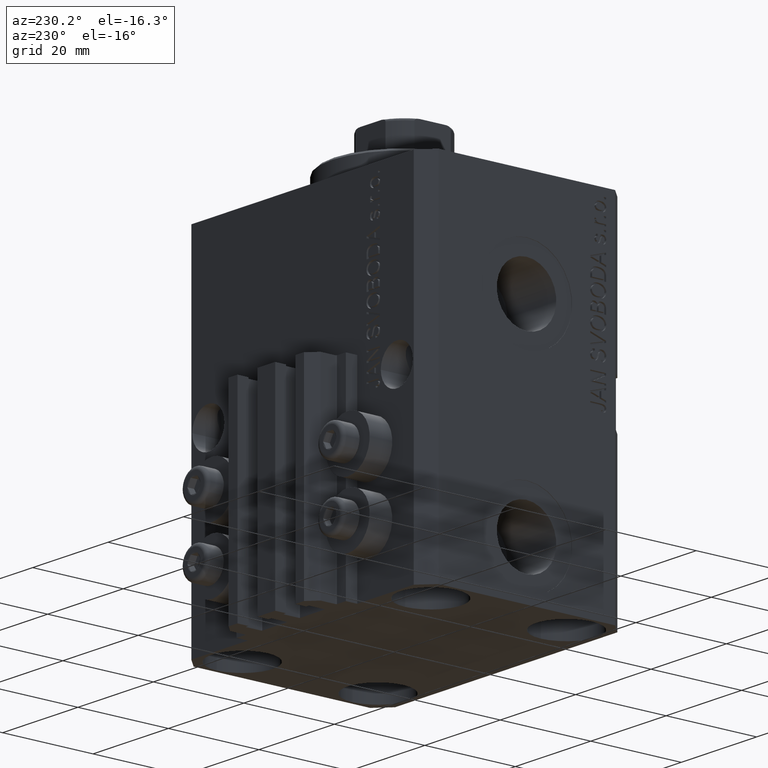
[diagram: clean part render]
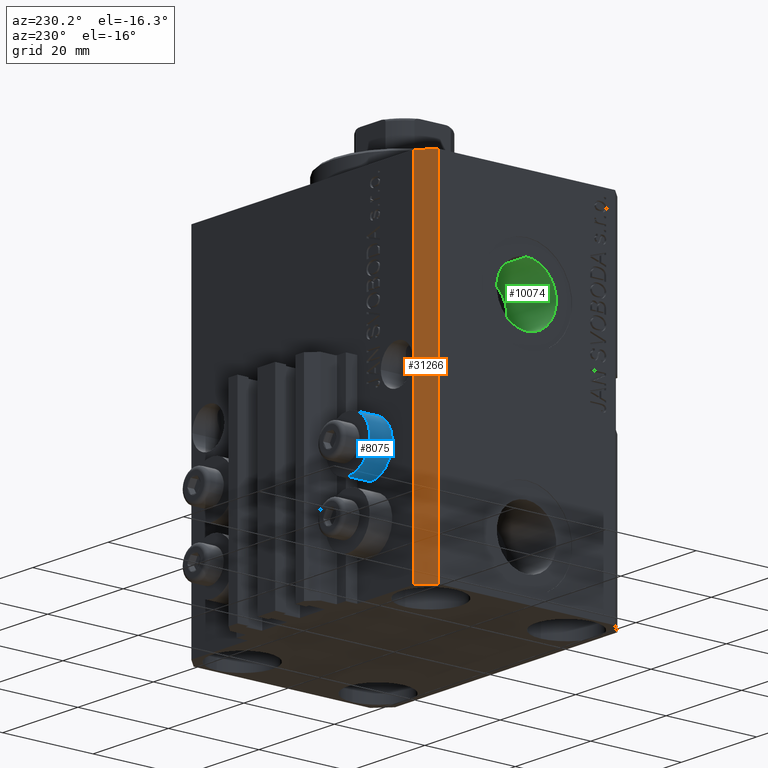
[diagram: same view with three faces highlighted in distinct colors, each labeled with its STEP entity id]
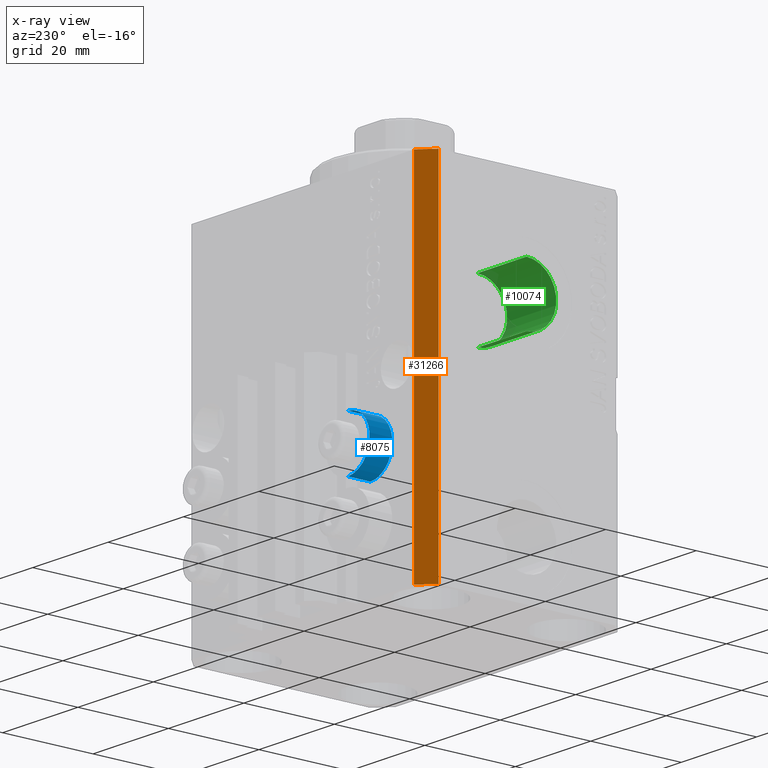
[diagram: x-ray of the same camera — body ghosted, the three highlighted faces saturated]
A machine part, auxiliary view with three faces highlighted in distinct colors.
The next image is the same camera in x-ray (body ghosted, the three faces saturated) — at least one of them is partly hidden behind the body in this view.
Their STEP definitions:

[orange] entity #31266 — the highlighted planar face has unit normal (-0.7071, 0.7071, 0).
#586 = CARTESIAN_POINT ( 'NONE',  ( -29.49999999999650413, 22.49999999999949907, -77.00000000000000000 ) ) ;
#4315 = PLANE ( 'NONE',  #42856 ) ;
#4397 = EDGE_CURVE ( 'NONE', #41271, #10428, #25678, .T. ) ;
#4858 = LINE ( 'NONE', #586, #33790 ) ;
#5523 = CARTESIAN_POINT ( 'NONE',  ( -32.49999999999650413, 19.49999999999949907, 0.000000000000000000 ) ) ;
#5705 = LINE ( 'NONE', #23149, #43331 ) ;
#6126 = EDGE_CURVE ( 'NONE', #39138, #10428, #26517, .T. ) ;
#6706 = VERTEX_POINT ( 'NONE', #10854 ) ;
#7677 = DIRECTION ( 'NONE',  ( -0.7071067811865475727, 0.7071067811865475727, 0.000000000000000000 ) ) ;
#8164 = EDGE_CURVE ( 'NONE', #6706, #41271, #5705, .T. ) ;
#10428 = VERTEX_POINT ( 'NONE', #5523 ) ;
#10582 = VECTOR ( 'NONE', #22094, 1000.000000000000000 ) ;
#10854 = CARTESIAN_POINT ( 'NONE',  ( -29.49999999999650413, 22.49999999999949907, -77.00000000000000000 ) ) ;
#11026 = FACE_OUTER_BOUND ( 'NONE', #37550, .T. ) ;
#11155 = ORIENTED_EDGE ( 'NONE', *, *, #6126, .F. ) ;
#12199 = DIRECTION ( 'NONE',  ( -0.7071067811865474617, -0.7071067811865474617, 0.000000000000000000 ) ) ;
#15858 = DIRECTION ( 'NONE',  ( 0.000000000000000000, 0.000000000000000000, 1.000000000000000000 ) ) ;
#18237 = VECTOR ( 'NONE', #12199, 1000.000000000000114 ) ;
#19898 = ORIENTED_EDGE ( 'NONE', *, *, #33502, .F. ) ;
#22094 = DIRECTION ( 'NONE',  ( 0.000000000000000000, 0.000000000000000000, 1.000000000000000000 ) ) ;
#22618 = CARTESIAN_POINT ( 'NONE',  ( -32.49999999999650413, 19.49999999999949907, -77.00000000000000000 ) ) ;
#23149 = CARTESIAN_POINT ( 'NONE',  ( -29.49999999999650413, 22.49999999999949907, -77.00000000000000000 ) ) ;
#25678 = LINE ( 'NONE', #26158, #10582 ) ;
#25814 = DIRECTION ( 'NONE',  ( -0.7071067811865474617, -0.7071067811865474617, 0.000000000000000000 ) ) ;
#26158 = CARTESIAN_POINT ( 'NONE',  ( -32.49999999999650413, 19.49999999999949907, -77.00000000000000000 ) ) ;
#26517 = LINE ( 'NONE', #33914, #18237 ) ;
#28292 = CARTESIAN_POINT ( 'NONE',  ( -29.49999999999650413, 22.49999999999949907, -77.00000000000000000 ) ) ;
#29150 = ORIENTED_EDGE ( 'NONE', *, *, #8164, .T. ) ;
#30951 = ORIENTED_EDGE ( 'NONE', *, *, #4397, .T. ) ;
#31266 = ADVANCED_FACE ( 'NONE', ( #11026 ), #4315, .T. ) ;
#33502 = EDGE_CURVE ( 'NONE', #6706, #39138, #4858, .T. ) ;
#33790 = VECTOR ( 'NONE', #15858, 1000.000000000000000 ) ;
#33914 = CARTESIAN_POINT ( 'NONE',  ( -29.49999999999650413, 22.49999999999949907, 0.000000000000000000 ) ) ;
#37550 = EDGE_LOOP ( 'NONE', ( #11155, #19898, #29150, #30951 ) ) ;
#39138 = VERTEX_POINT ( 'NONE', #44599 ) ;
#41271 = VERTEX_POINT ( 'NONE', #22618 ) ;
#42856 = AXIS2_PLACEMENT_3D ( 'NONE', #28292, #7677, #25814 ) ;
#43331 = VECTOR ( 'NONE', #45083, 1000.000000000000114 ) ;
#44599 = CARTESIAN_POINT ( 'NONE',  ( -29.49999999999650413, 22.49999999999949907, 0.000000000000000000 ) ) ;
#45083 = DIRECTION ( 'NONE',  ( -0.7071067811865474617, -0.7071067811865474617, 0.000000000000000000 ) ) ;

[blue] entity #8075 — the highlighted cylindrical surface (edge-blend (fillet) strip) has radius 5.8 mm, axis along (0, 1, 0).
#3396 = CIRCLE ( 'NONE', #30090, 5.799999999999999822 ) ;
#5542 = CARTESIAN_POINT ( 'NONE',  ( -18.00000000000000355, 27.49999999996051514, -44.60000000000000142 ) ) ;
#5952 = VERTEX_POINT ( 'NONE', #14839 ) ;
#8075 = ADVANCED_FACE ( 'NONE', ( #22185 ), #15266, .T. ) ;
#8774 = EDGE_CURVE ( 'NONE', #5952, #36092, #39519, .T. ) ;
#9499 = DIRECTION ( 'NONE',  ( -0.000000000000000000, 1.000000000000000000, -0.000000000000000000 ) ) ;
#11625 = ORIENTED_EDGE ( 'NONE', *, *, #26125, .T. ) ;
#14364 = AXIS2_PLACEMENT_3D ( 'NONE', #36744, #22906, #44133 ) ;
#14367 = DIRECTION ( 'NONE',  ( 0.000000000000000000, 0.000000000000000000, 1.000000000000000000 ) ) ;
#14839 = CARTESIAN_POINT ( 'NONE',  ( -18.00000000000000355, 27.49999999996051514, -56.20000000000000284 ) ) ;
#15266 = CYLINDRICAL_SURFACE ( 'NONE', #14364, 5.799999999999999822 ) ;
#18307 = ORIENTED_EDGE ( 'NONE', *, *, #8774, .F. ) ;
#19527 = EDGE_LOOP ( 'NONE', ( #22746, #42841, #11625, #18307 ) ) ;
#20228 = VERTEX_POINT ( 'NONE', #36347 ) ;
#22185 = FACE_OUTER_BOUND ( 'NONE', #19527, .T. ) ;
#22207 = DIRECTION ( 'NONE',  ( -0.000000000000000000, 1.000000000000000000, -0.000000000000000000 ) ) ;
#22746 = ORIENTED_EDGE ( 'NONE', *, *, #38555, .F. ) ;
#22906 = DIRECTION ( 'NONE',  ( -0.000000000000000000, 1.000000000000000000, -0.000000000000000000 ) ) ;
#24066 = VECTOR ( 'NONE', #9499, 1000.000000000000000 ) ;
#24106 = CARTESIAN_POINT ( 'NONE',  ( -18.00000000000000355, 22.49999999999951328, -56.20000000000000284 ) ) ;
#24710 = DIRECTION ( 'NONE',  ( -0.000000000000000000, 1.000000000000000000, -0.000000000000000000 ) ) ;
#26125 = EDGE_CURVE ( 'NONE', #20228, #36092, #44325, .T. ) ;
#27607 = CARTESIAN_POINT ( 'NONE',  ( -18.00000000000000355, 27.49999999996051514, -50.39999999999999858 ) ) ;
#28063 = DIRECTION ( 'NONE',  ( 0.000000000000000000, 0.000000000000000000, 1.000000000000000000 ) ) ;
#30090 = AXIS2_PLACEMENT_3D ( 'NONE', #47019, #22207, #14367 ) ;
#30994 = CARTESIAN_POINT ( 'NONE',  ( -18.00000000000000355, 27.49999999996051514, -56.20000000000000284 ) ) ;
#32673 = DIRECTION ( 'NONE',  ( -0.000000000000000000, 1.000000000000000000, -0.000000000000000000 ) ) ;
#35082 = VECTOR ( 'NONE', #32673, 1000.000000000000000 ) ;
#36092 = VERTEX_POINT ( 'NONE', #5542 ) ;
#36347 = CARTESIAN_POINT ( 'NONE',  ( -18.00000000000000355, 22.49999999999951328, -44.60000000000000142 ) ) ;
#36487 = EDGE_CURVE ( 'NONE', #41090, #20228, #3396, .T. ) ;
#36703 = CARTESIAN_POINT ( 'NONE',  ( -18.00000000000000355, 27.49999999996051514, -44.60000000000000142 ) ) ;
#36744 = CARTESIAN_POINT ( 'NONE',  ( -18.00000000000000355, 27.49999999996051514, -50.39999999999999858 ) ) ;
#38555 = EDGE_CURVE ( 'NONE', #41090, #5952, #39069, .T. ) ;
#39069 = LINE ( 'NONE', #30994, #24066 ) ;
#39519 = CIRCLE ( 'NONE', #45625, 5.799999999999999822 ) ;
#41090 = VERTEX_POINT ( 'NONE', #24106 ) ;
#42841 = ORIENTED_EDGE ( 'NONE', *, *, #36487, .T. ) ;
#44133 = DIRECTION ( 'NONE',  ( 0.000000000000000000, 0.000000000000000000, 1.000000000000000000 ) ) ;
#44325 = LINE ( 'NONE', #36703, #35082 ) ;
#45625 = AXIS2_PLACEMENT_3D ( 'NONE', #27607, #24710, #28063 ) ;
#47019 = CARTESIAN_POINT ( 'NONE',  ( -18.00000000000000355, 22.49999999999951328, -50.39999999999999858 ) ) ;

[green] entity #10074 — the highlighted cylindrical surface (partial cylindrical patch) has radius 6.58 mm, axis along (-1, -0, -0).
#722 = CARTESIAN_POINT ( 'NONE',  ( -19.39999999999650271, 8.058175938389579572E-16, -28.57999999999999829 ) ) ;
#2512 = VERTEX_POINT ( 'NONE', #8047 ) ;
#2715 = AXIS2_PLACEMENT_3D ( 'NONE', #46918, #28819, #14256 ) ;
#4854 = DIRECTION ( 'NONE',  ( 0.000000000000000000, 0.000000000000000000, 1.000000000000000000 ) ) ;
#6165 = LINE ( 'NONE', #17376, #21228 ) ;
#6453 = EDGE_CURVE ( 'NONE', #2512, #33326, #31925, .T. ) ;
#8047 = CARTESIAN_POINT ( 'NONE',  ( -19.39999999999650271, 0.000000000000000000, -15.41999999999999993 ) ) ;
#8194 = EDGE_CURVE ( 'NONE', #30314, #27229, #6165, .T. ) ;
#8683 = CYLINDRICAL_SURFACE ( 'NONE', #26616, 6.579999999999999183 ) ;
#10074 = ADVANCED_FACE ( 'NONE', ( #41386 ), #8683, .F. ) ;
#11860 = DIRECTION ( 'NONE',  ( -1.000000000000000000, 0.000000000000000000, 0.000000000000000000 ) ) ;
#12761 = DIRECTION ( 'NONE',  ( -1.000000000000000000, -0.000000000000000000, -0.000000000000000000 ) ) ;
#13320 = CIRCLE ( 'NONE', #18626, 6.579999999999999183 ) ;
#13980 = CARTESIAN_POINT ( 'NONE',  ( -32.39999999999650271, 0.000000000000000000, -15.41999999999999993 ) ) ;
#14256 = DIRECTION ( 'NONE',  ( 0.000000000000000000, 0.000000000000000000, 1.000000000000000000 ) ) ;
#17376 = CARTESIAN_POINT ( 'NONE',  ( -19.39999999999650271, 8.058175938389580558E-16, -28.57999999999999829 ) ) ;
#17861 = ORIENTED_EDGE ( 'NONE', *, *, #8194, .T. ) ;
#18050 = ORIENTED_EDGE ( 'NONE', *, *, #39531, .F. ) ;
#18626 = AXIS2_PLACEMENT_3D ( 'NONE', #43615, #11860, #44544 ) ;
#18916 = VECTOR ( 'NONE', #43116, 1000.000000000000000 ) ;
#19913 = ORIENTED_EDGE ( 'NONE', *, *, #6453, .F. ) ;
#21228 = VECTOR ( 'NONE', #46486, 1000.000000000000000 ) ;
#26616 = AXIS2_PLACEMENT_3D ( 'NONE', #45432, #12761, #4854 ) ;
#27127 = CIRCLE ( 'NONE', #2715, 6.579999999999999183 ) ;
#27229 = VERTEX_POINT ( 'NONE', #29975 ) ;
#28819 = DIRECTION ( 'NONE',  ( -1.000000000000000000, 0.000000000000000000, 0.000000000000000000 ) ) ;
#29975 = CARTESIAN_POINT ( 'NONE',  ( -32.39999999999650271, 8.058175938389579572E-16, -28.57999999999999829 ) ) ;
#30314 = VERTEX_POINT ( 'NONE', #722 ) ;
#31925 = LINE ( 'NONE', #32635, #18916 ) ;
#32635 = CARTESIAN_POINT ( 'NONE',  ( -19.39999999999650271, 0.000000000000000000, -15.41999999999999993 ) ) ;
#33326 = VERTEX_POINT ( 'NONE', #13980 ) ;
#38644 = EDGE_CURVE ( 'NONE', #27229, #33326, #27127, .T. ) ;
#39531 = EDGE_CURVE ( 'NONE', #30314, #2512, #13320, .T. ) ;
#40358 = EDGE_LOOP ( 'NONE', ( #18050, #17861, #41209, #19913 ) ) ;
#41209 = ORIENTED_EDGE ( 'NONE', *, *, #38644, .T. ) ;
#41386 = FACE_OUTER_BOUND ( 'NONE', #40358, .T. ) ;
#43116 = DIRECTION ( 'NONE',  ( -1.000000000000000000, -0.000000000000000000, -0.000000000000000000 ) ) ;
#43615 = CARTESIAN_POINT ( 'NONE',  ( -19.39999999999650271, 0.000000000000000000, -22.00000000000000000 ) ) ;
#44544 = DIRECTION ( 'NONE',  ( 0.000000000000000000, 0.000000000000000000, 1.000000000000000000 ) ) ;
#45432 = CARTESIAN_POINT ( 'NONE',  ( -19.39999999999650271, 0.000000000000000000, -22.00000000000000000 ) ) ;
#46486 = DIRECTION ( 'NONE',  ( -1.000000000000000000, -0.000000000000000000, -0.000000000000000000 ) ) ;
#46918 = CARTESIAN_POINT ( 'NONE',  ( -32.39999999999650271, 0.000000000000000000, -22.00000000000000000 ) ) ;